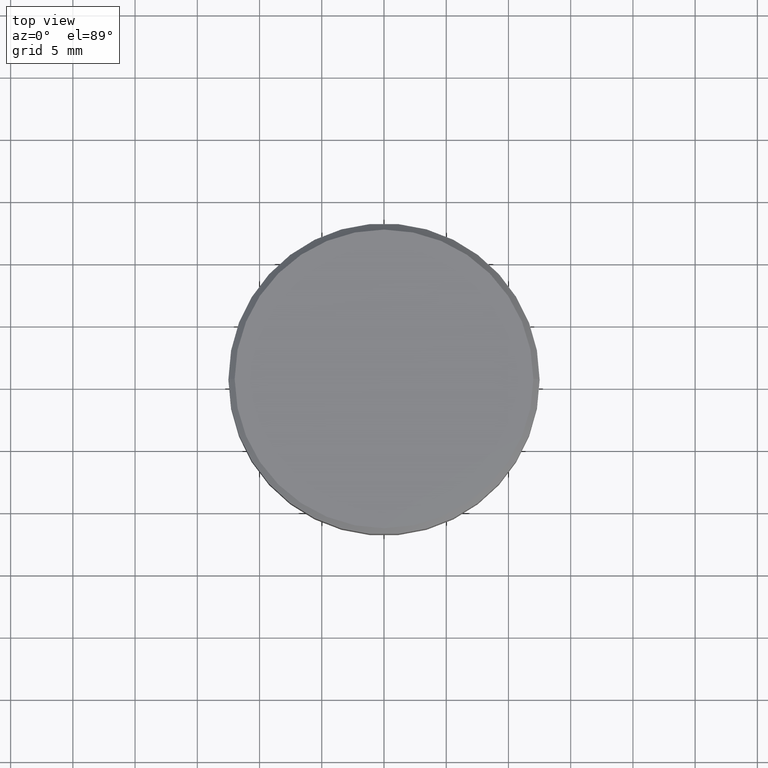
[diagram: clean part render]
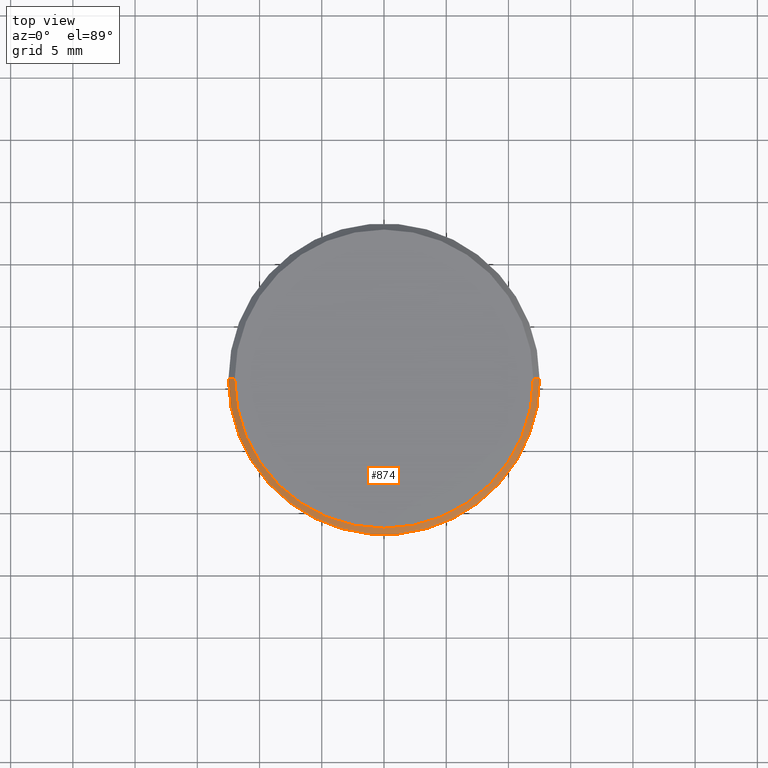
[diagram: same view with one face highlighted and labeled with its STEP entity id]
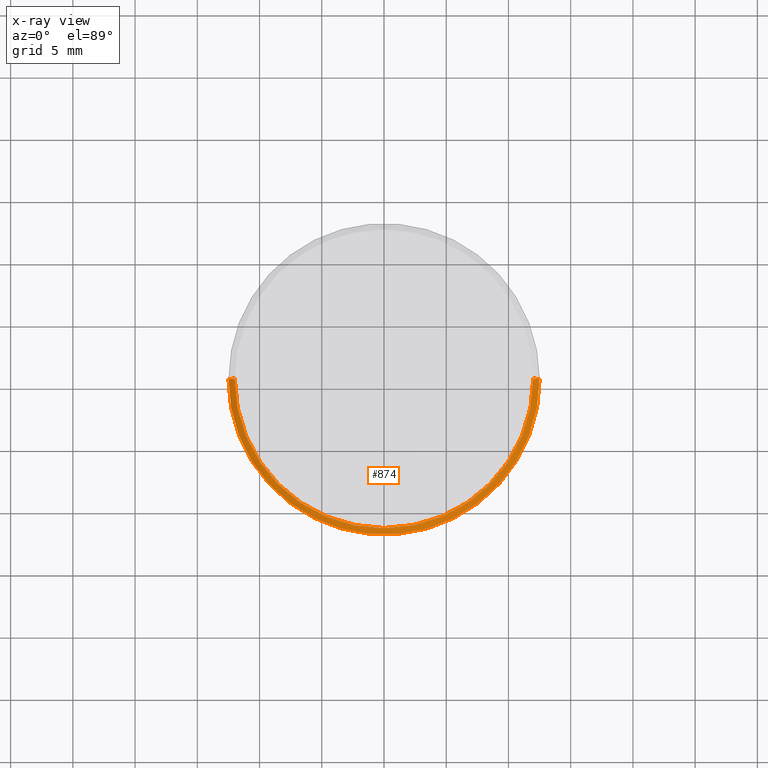
[diagram: x-ray of the same camera — body ghosted, the highlighted face saturated]
A machine part, top view. The second image highlights one B-rep face of the part: STEP entity #874.
The next image is the same camera in x-ray: the body ghosted, the highlighted face saturated — about 0% of this face is hidden behind the body in this view.
In plain terms, the highlighted conical surface has half-angle 45 deg.
Its self-contained STEP definition (entity closure, byte-faithful):
#66 = ORIENTED_EDGE ( 'NONE', *, *, #1063, .F. ) ;
#78 = VERTEX_POINT ( 'NONE', #332 ) ;
#99 = AXIS2_PLACEMENT_3D ( 'NONE', #425, #790, #553 ) ;
#103 = EDGE_CURVE ( 'NONE', #1155, #154, #1097, .T. ) ;
#154 = VERTEX_POINT ( 'NONE', #375 ) ;
#212 = DIRECTION ( 'NONE',  ( 0.000000000000000000, 0.000000000000000000, -1.000000000000000000 ) ) ;
#213 = CONICAL_SURFACE ( 'NONE', #1075, 11.99999999999998934, 0.7853981633974465026 ) ;
#246 = CARTESIAN_POINT ( 'NONE',  ( -11.99999999999998934, 0.000000000000000000, 0.000000000000000000 ) ) ;
#257 = DIRECTION ( 'NONE',  ( 0.7071067811865462405, 8.659560562354918067E-17, -0.7071067811865489050 ) ) ;
#284 = AXIS2_PLACEMENT_3D ( 'NONE', #388, #750, #1109 ) ;
#332 = CARTESIAN_POINT ( 'NONE',  ( -11.99999999999998934, 0.000000000000000000, 0.000000000000000000 ) ) ;
#375 = CARTESIAN_POINT ( 'NONE',  ( -12.50000000000000000, 1.530808498934191521E-15, -0.5000000000000126565 ) ) ;
#388 = CARTESIAN_POINT ( 'NONE',  ( 0.000000000000000000, 0.000000000000000000, 0.000000000000000000 ) ) ;
#425 = CARTESIAN_POINT ( 'NONE',  ( 0.000000000000000000, 0.000000000000000000, -0.5000000000000126565 ) ) ;
#455 = CARTESIAN_POINT ( 'NONE',  ( 11.99999999999998934, 1.500192328955507143E-15, 0.000000000000000000 ) ) ;
#485 = VERTEX_POINT ( 'NONE', #455 ) ;
#509 = ORIENTED_EDGE ( 'NONE', *, *, #748, .T. ) ;
#527 = ORIENTED_EDGE ( 'NONE', *, *, #866, .F. ) ;
#546 = CARTESIAN_POINT ( 'NONE',  ( 11.99999999999998934, 1.469576158976822567E-15, 0.000000000000000000 ) ) ;
#553 = DIRECTION ( 'NONE',  ( 1.000000000000000000, 0.000000000000000000, 0.000000000000000000 ) ) ;
#565 = DIRECTION ( 'NONE',  ( -1.000000000000000000, 0.000000000000000000, 0.000000000000000000 ) ) ;
#602 = DIRECTION ( 'NONE',  ( -0.7071067811865462405, 0.000000000000000000, -0.7071067811865489050 ) ) ;
#625 = CIRCLE ( 'NONE', #284, 11.99999999999998934 ) ;
#659 = FACE_OUTER_BOUND ( 'NONE', #965, .T. ) ;
#700 = LINE ( 'NONE', #246, #704 ) ;
#704 = VECTOR ( 'NONE', #602, 999.9999999999998863 ) ;
#748 = EDGE_CURVE ( 'NONE', #78, #154, #700, .T. ) ;
#750 = DIRECTION ( 'NONE',  ( -0.000000000000000000, -0.000000000000000000, 1.000000000000000000 ) ) ;
#790 = DIRECTION ( 'NONE',  ( 0.000000000000000000, 0.000000000000000000, -1.000000000000000000 ) ) ;
#806 = ORIENTED_EDGE ( 'NONE', *, *, #103, .F. ) ;
#866 = EDGE_CURVE ( 'NONE', #78, #485, #625, .T. ) ;
#874 = ADVANCED_FACE ( 'NONE', ( #659 ), #213, .T. ) ;
#901 = CARTESIAN_POINT ( 'NONE',  ( 12.50000000000000000, 0.000000000000000000, -0.5000000000000126565 ) ) ;
#965 = EDGE_LOOP ( 'NONE', ( #66, #527, #509, #806 ) ) ;
#1016 = CARTESIAN_POINT ( 'NONE',  ( 0.000000000000000000, 0.000000000000000000, 0.000000000000000000 ) ) ;
#1063 = EDGE_CURVE ( 'NONE', #485, #1155, #1065, .T. ) ;
#1065 = LINE ( 'NONE', #546, #1101 ) ;
#1075 = AXIS2_PLACEMENT_3D ( 'NONE', #1016, #212, #565 ) ;
#1097 = CIRCLE ( 'NONE', #99, 12.50000000000000000 ) ;
#1101 = VECTOR ( 'NONE', #257, 999.9999999999998863 ) ;
#1109 = DIRECTION ( 'NONE',  ( 1.000000000000000000, 0.000000000000000000, 0.000000000000000000 ) ) ;
#1155 = VERTEX_POINT ( 'NONE', #901 ) ;